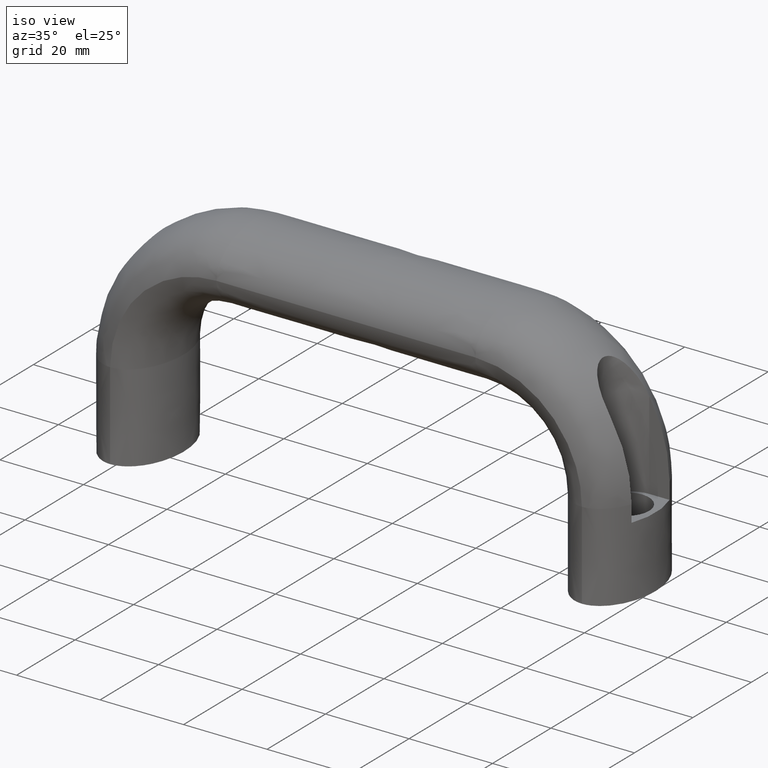
[diagram: clean part render]
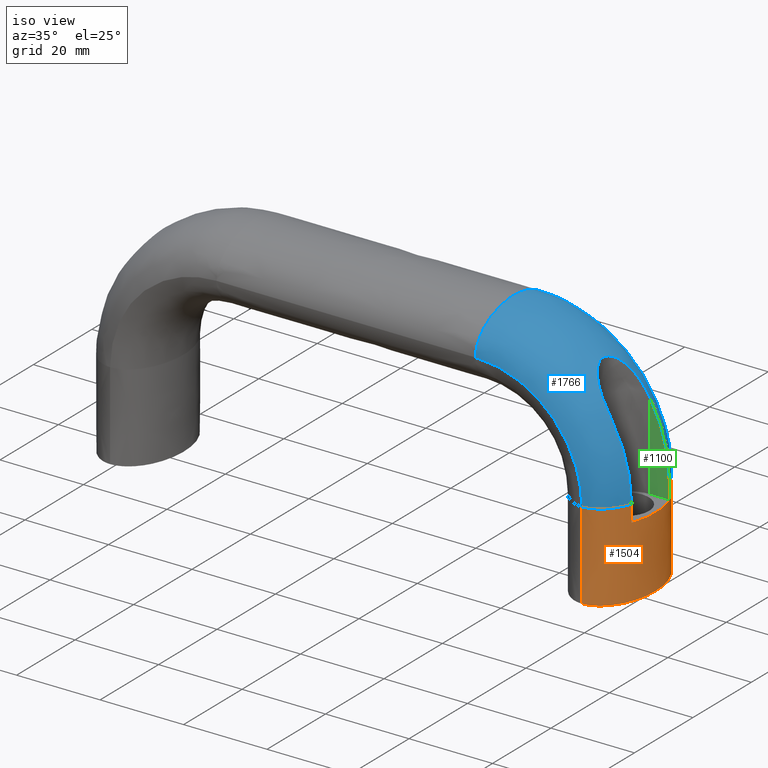
[diagram: same view with three faces highlighted in distinct colors, each labeled with its STEP entity id]
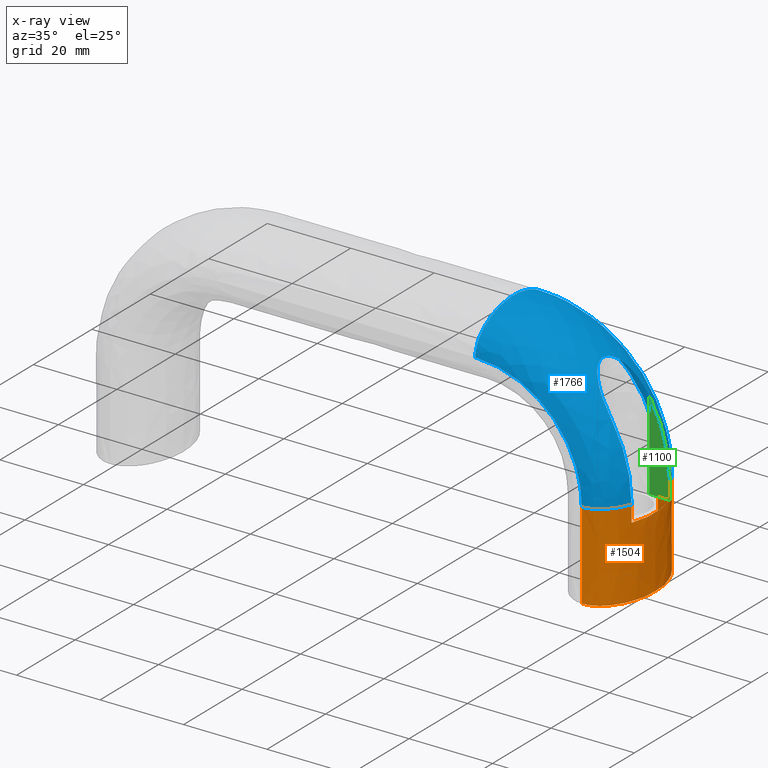
[diagram: x-ray of the same camera — body ghosted, the three highlighted faces saturated]
A machine part, iso view with three faces highlighted in distinct colors.
The next image is the same camera in x-ray (body ghosted, the three faces saturated) — at least one of them is partly hidden behind the body in this view.
Their STEP definitions:

[orange] entity #1504 — the highlighted face is a freeform B-spline surface patch.
#903=CARTESIAN_POINT('',(121.853663334117000,-6.500000000000000,17.0));
#904=VERTEX_POINT('',#903);
#910=CARTESIAN_POINT('',(121.853663334117000,6.499999999999920,17.0));
#911=VERTEX_POINT('',#910);
#912=CARTESIAN_POINT('',(121.853663334117100,6.500000000000044,17.0));
#913=CARTESIAN_POINT('',(122.592291666798900,4.531679130054392,17.0));
#914=CARTESIAN_POINT('',(123.0,2.270503260364182,17.0));
#915=CARTESIAN_POINT('',(123.0,-2.270503260364186,17.0));
#916=CARTESIAN_POINT('',(122.592291666798900,-4.531679130054394,17.0));
#917=CARTESIAN_POINT('',(121.853663334117100,-6.500000000000045,17.0));
#918=B_SPLINE_CURVE_WITH_KNOTS('',3,(#912,#913,#914,#915,#916,#917),.UNSPECIFIED.,.F.,.U.,(4,2,4),(0.666608811416948,0.750000000000000,0.833391188583052),.UNSPECIFIED.);
#919=EDGE_CURVE('',#911,#904,#918,.T.);
#936=CARTESIAN_POINT('',(121.853663334117000,-6.500000000000000,21.0));
#937=VERTEX_POINT('',#936);
#947=CARTESIAN_POINT('',(121.853663334117000,-6.500000000000000,21.0));
#948=CARTESIAN_POINT('',(121.853663334117000,-6.500000000000000,17.0));
#949=QUASI_UNIFORM_CURVE('',1,(#947,#948),.UNSPECIFIED.,.F.,.U.);
#950=EDGE_CURVE('',#937,#904,#949,.T.);
#1080=CARTESIAN_POINT('',(121.853663334117200,6.499999999999920,21.0));
#1081=VERTEX_POINT('',#1080);
#1093=CARTESIAN_POINT('',(121.853663334117000,6.499999999999920,17.0));
#1094=CARTESIAN_POINT('',(121.853663334117200,6.499999999999920,21.0));
#1095=QUASI_UNIFORM_CURVE('',1,(#1093,#1094),.UNSPECIFIED.,.F.,.U.);
#1096=EDGE_CURVE('',#911,#1081,#1095,.T.);
#1346=CARTESIAN_POINT('',(114.500000000000000,-13.0,0.0));
#1347=VERTEX_POINT('',#1346);
#1348=CARTESIAN_POINT('',(114.500000000000000,13.0,0.0));
#1349=VERTEX_POINT('',#1348);
#1372=CARTESIAN_POINT('',(114.500000000000000,13.0,0.0));
#1373=CARTESIAN_POINT('',(115.061008350387890,13.000005612824429,0.0));
#1374=CARTESIAN_POINT('',(116.210559998588490,12.826763592679921,0.0));
#1375=CARTESIAN_POINT('',(117.833314615998110,12.048234367351061,0.0));
#1376=CARTESIAN_POINT('',(119.315182254774600,10.820111583014061,0.0));
#1377=CARTESIAN_POINT('',(120.593216575982000,9.179086004326708,0.0));
#1378=CARTESIAN_POINT('',(121.644630209930990,7.203182874372907,0.0));
#1379=CARTESIAN_POINT('',(122.414837323242100,4.955442864097499,0.0));
#1380=CARTESIAN_POINT('',(122.896377610858910,2.525474974098515,0.0));
#1381=CARTESIAN_POINT('',(123.052338685462400,0.000251144597643,0.0));
#1382=CARTESIAN_POINT('',(122.896418713332590,-2.525220685022674,0.0));
#1383=CARTESIAN_POINT('',(122.414982038391300,-4.954978243300156,0.0));
#1384=CARTESIAN_POINT('',(121.644748482693000,-7.202965562011068,0.0));
#1385=CARTESIAN_POINT('',(120.593482829275000,-9.178724764850465,0.0));
#1386=CARTESIAN_POINT('',(119.315369231125600,-10.819976152613711,0.0));
#1387=CARTESIAN_POINT('',(117.833520107176200,-12.048087292629040,0.0));
#1388=CARTESIAN_POINT('',(116.210674697022700,-12.826963510561610,0.0));
#1389=CARTESIAN_POINT('',(115.061044984223600,-13.000076421159349,0.0));
#1390=CARTESIAN_POINT('',(114.500000000000000,-13.0,0.0));
#1391=B_SPLINE_CURVE_WITH_KNOTS('',3,(#1372,#1373,#1374,#1375,#1376,#1377,#1378,#1379,#1380,#1381,#1382,#1383,#1384,#1385,#1386,#1387,#1388,#1389,#1390),.UNSPECIFIED.,.F.,.U.,(4,1,1,1,1,1,1,1,1,1,1,1,1,1,1,1,4),(0.500000000000000,0.524589224867584,0.550385193088301,0.578210275846037,0.608546752851924,0.641322715691588,0.676258558830424,0.712714611411259,0.749999378944865,0.787273077896982,0.823740197974338,0.858665894471785,0.891451999925935,0.921779805092730,0.949613551016802,0.975409169413542,1.0),.UNSPECIFIED.);
#1392=EDGE_CURVE('',#1349,#1347,#1391,.T.);
#1405=CARTESIAN_POINT('',(114.232964624444900,13.0,21.210000000000001));
#1406=CARTESIAN_POINT('',(114.321978819336910,12.999001277163620,21.210000000000001));
#1407=CARTESIAN_POINT('',(115.523570531962600,13.027045414409230,21.210000000000001));
#1408=CARTESIAN_POINT('',(117.837471083550300,12.323036565618370,21.210000000000001));
#1409=CARTESIAN_POINT('',(119.723728010842510,10.395617706442160,21.210000000000001));
#1410=CARTESIAN_POINT('',(122.083928680683400,6.785826563922671,21.210000000000001));
#1411=CARTESIAN_POINT('',(123.0,3.403392041388941,21.210000000000001));
#1412=CARTESIAN_POINT('',(123.0,-3.403392041388945,21.210000000000001));
#1413=CARTESIAN_POINT('',(122.083928680683400,-6.785826563922671,21.210000000000001));
#1414=CARTESIAN_POINT('',(119.723728010842510,-10.395617706442160,21.210000000000001));
#1415=CARTESIAN_POINT('',(117.837471083550200,-12.323036565618350,21.210000000000001));
#1416=CARTESIAN_POINT('',(115.523570531962600,-13.027045414409240,21.210000000000001));
#1417=CARTESIAN_POINT('',(114.321978819336910,-12.999001277163620,21.210000000000001));
#1418=CARTESIAN_POINT('',(114.232964624444800,-13.0,21.210000000000001));
#1419=CARTESIAN_POINT('',(114.232964624444800,13.0,14.070000000000000));
#1420=CARTESIAN_POINT('',(114.321978819336910,12.999001277163620,14.070000000000000));
#1421=CARTESIAN_POINT('',(115.523570531962600,13.027045414409230,14.070000000000000));
#1422=CARTESIAN_POINT('',(117.837471083550300,12.323036565618370,14.070000000000000));
#1423=CARTESIAN_POINT('',(119.723728010842510,10.395617706442160,14.070000000000000));
#1424=CARTESIAN_POINT('',(122.083928680683400,6.785826563922671,14.070000000000000));
#1425=CARTESIAN_POINT('',(123.0,3.403392041388940,14.070000000000000));
#1426=CARTESIAN_POINT('',(123.0,-3.403392041388945,14.070000000000000));
#1427=CARTESIAN_POINT('',(122.083928680683400,-6.785826563922671,14.070000000000000));
#1428=CARTESIAN_POINT('',(119.723728010842510,-10.395617706442160,14.070000000000000));
#1429=CARTESIAN_POINT('',(117.837471083550300,-12.323036565618350,14.070000000000000));
#1430=CARTESIAN_POINT('',(115.523570531962600,-13.027045414409240,14.069999999999990));
#1431=CARTESIAN_POINT('',(114.321978819336910,-12.999001277163620,14.070000000000000));
#1432=CARTESIAN_POINT('',(114.232964624444800,-13.0,14.070000000000000));
#1433=CARTESIAN_POINT('',(114.232964624444800,13.0,6.930000000000292));
#1434=CARTESIAN_POINT('',(114.321978819336910,12.999001277163620,6.930000000000292));
#1435=CARTESIAN_POINT('',(115.523570531962600,13.027045414409240,6.930000000000298));
#1436=CARTESIAN_POINT('',(117.837471083550200,12.323036565618370,6.930000000000296));
#1437=CARTESIAN_POINT('',(119.723728010842510,10.395617706442160,6.930000000000297));
#1438=CARTESIAN_POINT('',(122.083928680683400,6.785826563922672,6.930000000000297));
#1439=CARTESIAN_POINT('',(123.0,3.403392041388940,6.930000000000297));
#1440=CARTESIAN_POINT('',(123.0,-3.403392041388945,6.930000000000297));
#1441=CARTESIAN_POINT('',(122.083928680683400,-6.785826563922672,6.930000000000297));
#1442=CARTESIAN_POINT('',(119.723728010842510,-10.395617706442151,6.930000000000297));
#1443=CARTESIAN_POINT('',(117.837471083550200,-12.323036565618350,6.930000000000297));
#1444=CARTESIAN_POINT('',(115.523570531962700,-13.027045414409240,6.930000000000297));
#1445=CARTESIAN_POINT('',(114.321978819336810,-12.999001277163620,6.930000000000292));
#1446=CARTESIAN_POINT('',(114.232964624444800,-13.0,6.930000000000292));
#1447=CARTESIAN_POINT('',(114.232964624444900,13.0,-0.210000000000011));
#1448=CARTESIAN_POINT('',(114.321978819336910,12.999001277163620,-0.210000000000011));
#1449=CARTESIAN_POINT('',(115.523570531962600,13.027045414409230,-0.210000000000012));
#1450=CARTESIAN_POINT('',(117.837471083550300,12.323036565618370,-0.210000000000012));
#1451=CARTESIAN_POINT('',(119.723728010842510,10.395617706442160,-0.210000000000012));
#1452=CARTESIAN_POINT('',(122.083928680683400,6.785826563922671,-0.210000000000012));
#1453=CARTESIAN_POINT('',(123.0,3.403392041388941,-0.210000000000012));
#1454=CARTESIAN_POINT('',(123.0,-3.403392041388945,-0.210000000000012));
#1455=CARTESIAN_POINT('',(122.083928680683400,-6.785826563922671,-0.210000000000012));
#1456=CARTESIAN_POINT('',(119.723728010842510,-10.395617706442160,-0.210000000000012));
#1457=CARTESIAN_POINT('',(117.837471083550200,-12.323036565618350,-0.210000000000012));
#1458=CARTESIAN_POINT('',(115.523570531962600,-13.027045414409240,-0.210000000000012));
#1459=CARTESIAN_POINT('',(114.321978819336910,-12.999001277163620,-0.210000000000011));
#1460=CARTESIAN_POINT('',(114.232964624444800,-13.0,-0.210000000000011));
#1461=B_SPLINE_SURFACE_WITH_KNOTS('',3,3,((#1405,#1419,#1433,#1447),(#1406,#1420,#1434,#1448),(#1407,#1421,#1435,#1449),(#1408,#1422,#1436,#1450),(#1409,#1423,#1437,#1451),(#1410,#1424,#1438,#1452),(#1411,#1425,#1439,#1453),(#1412,#1426,#1440,#1454),(#1413,#1427,#1441,#1455),(#1414,#1428,#1442,#1456),(#1415,#1429,#1443,#1457),(#1416,#1430,#1444,#1458),(#1417,#1431,#1445,#1459),(#1418,#1432,#1446,#1460)),.UNSPECIFIED.,.F.,.F.,.U.,(4,1,1,2,2,2,1,1,4),(4,4),(0.0,0.400139247064698,5.401879835373181,10.403620423681661,20.407101600298631,30.410582776915600,35.412323365224083,40.414063953532562,40.814203200597277),(0.0,21.420000000000929),.UNSPECIFIED.);
#1462=CARTESIAN_POINT('',(114.500000000000000,13.0,21.0));
#1463=VERTEX_POINT('',#1462);
#1464=CARTESIAN_POINT('',(114.500000000000000,13.0,21.0));
#1465=CARTESIAN_POINT('',(114.500000000000000,13.0,0.0));
#1466=QUASI_UNIFORM_CURVE('',1,(#1464,#1465),.UNSPECIFIED.,.F.,.U.);
#1467=EDGE_CURVE('',#1463,#1349,#1466,.T.);
#1468=ORIENTED_EDGE('',*,*,#1467,.F.);
#1469=CARTESIAN_POINT('',(114.500000000000000,13.0,21.0));
#1470=CARTESIAN_POINT('',(115.612647398138610,13.000000000020670,21.0));
#1471=CARTESIAN_POINT('',(116.724857017036400,12.661644796734990,21.0));
#1472=CARTESIAN_POINT('',(118.780761333112690,11.359223048711820,21.0));
#1473=CARTESIAN_POINT('',(119.723647119734390,10.395668951316139,21.0));
#1474=CARTESIAN_POINT('',(121.034186361965690,8.391314816163209,21.0));
#1475=CARTESIAN_POINT('',(121.485117837588500,7.482112058636693,21.0));
#1476=CARTESIAN_POINT('',(121.853663334117200,6.499999999999920,21.0));
#1477=B_SPLINE_CURVE_WITH_KNOTS('',3,(#1469,#1470,#1471,#1472,#1473,#1474,#1475,#1476),.UNSPECIFIED.,.F.,.U.,(4,2,2,4),(0.800041661561313,0.875052076952157,0.950062492343001,1.0),.UNSPECIFIED.);
#1478=EDGE_CURVE('',#1463,#1081,#1477,.T.);
#1479=ORIENTED_EDGE('',*,*,#1478,.T.);
#1480=ORIENTED_EDGE('',*,*,#1096,.F.);
#1481=ORIENTED_EDGE('',*,*,#919,.T.);
#1482=ORIENTED_EDGE('',*,*,#950,.F.);
#1483=CARTESIAN_POINT('',(114.500000000000000,-13.0,21.0));
#1484=VERTEX_POINT('',#1483);
#1485=CARTESIAN_POINT('',(121.853663334117200,-6.499999999999955,21.0));
#1486=CARTESIAN_POINT('',(121.485117837596700,-7.482112058566534,21.0));
#1487=CARTESIAN_POINT('',(121.034186361996300,-8.391314816032326,21.0));
#1488=CARTESIAN_POINT('',(119.723647119786800,-10.395668951176340,21.0));
#1489=CARTESIAN_POINT('',(118.780761333152600,-11.359223048605340,21.0));
#1490=CARTESIAN_POINT('',(116.724857017054010,-12.661644796688099,21.0));
#1491=CARTESIAN_POINT('',(115.612647398146390,-13.0,21.0));
#1492=CARTESIAN_POINT('',(114.500000000000000,-13.0,21.0));
#1493=B_SPLINE_CURVE_WITH_KNOTS('',3,(#1485,#1486,#1487,#1488,#1489,#1490,#1491,#1492),.UNSPECIFIED.,.F.,.U.,(4,2,2,4),(0.0,0.049937507652875,0.124947923043719,0.199958338434562),.UNSPECIFIED.);
#1494=EDGE_CURVE('',#937,#1484,#1493,.T.);
#1495=ORIENTED_EDGE('',*,*,#1494,.T.);
#1496=CARTESIAN_POINT('',(114.500000000000000,-13.0,21.0));
#1497=CARTESIAN_POINT('',(114.500000000000000,-13.0,0.0));
#1498=QUASI_UNIFORM_CURVE('',1,(#1496,#1497),.UNSPECIFIED.,.F.,.U.);
#1499=EDGE_CURVE('',#1484,#1347,#1498,.T.);
#1500=ORIENTED_EDGE('',*,*,#1499,.T.);
#1501=ORIENTED_EDGE('',*,*,#1392,.F.);
#1502=EDGE_LOOP('',(#1468,#1479,#1480,#1481,#1482,#1495,#1500,#1501));
#1503=FACE_OUTER_BOUND('',#1502,.T.);
#1504=ADVANCED_FACE('',(#1503),#1461,.T.);

[blue] entity #1766 — the highlighted face is a freeform B-spline surface patch.
#934=CARTESIAN_POINT('',(117.000000340339200,-6.500000000000000,38.182549847164204));
#935=VERTEX_POINT('',#934);
#936=CARTESIAN_POINT('',(121.853663334117000,-6.500000000000000,21.0));
#937=VERTEX_POINT('',#936);
#938=CARTESIAN_POINT('',(117.000000340339200,-6.500000000000000,38.182549847164204));
#939=CARTESIAN_POINT('',(117.903660305802300,-6.500000000000000,36.710772062070880));
#940=CARTESIAN_POINT('',(118.691898080272100,-6.500000000000000,35.168176507748221));
#941=CARTESIAN_POINT('',(120.998570350824910,-6.500000000000000,29.599377028269590));
#942=CARTESIAN_POINT('',(121.853663334117200,-6.500000000000000,25.301237633467771));
#943=CARTESIAN_POINT('',(121.853663334117000,-6.500000000000000,21.0));
#944=B_SPLINE_CURVE_WITH_KNOTS('',3,(#938,#939,#940,#941,#942,#943),.UNSPECIFIED.,.F.,.U.,(4,2,4),(0.809704774322556,0.831547860635880,0.885938134169185),.UNSPECIFIED.);
#945=EDGE_CURVE('',#935,#937,#944,.T.);
#982=CARTESIAN_POINT('',(117.000000340339200,6.500000000000000,38.182549847164204));
#983=VERTEX_POINT('',#982);
#989=CARTESIAN_POINT('',(117.000000340339200,-6.500000000000000,38.182549847164204));
#990=CARTESIAN_POINT('',(116.689212819799590,-6.500000016272799,38.688724930215891));
#991=CARTESIAN_POINT('',(116.374075039149700,-6.477785489742129,39.187420523616723));
#992=CARTESIAN_POINT('',(115.737511739066510,-6.384325359717667,40.170530579331427));
#993=CARTESIAN_POINT('',(115.416074747314000,-6.313138619209945,40.654949402667761));
#994=CARTESIAN_POINT('',(114.769004948507300,-6.114507299175566,41.609429837874401));
#995=CARTESIAN_POINT('',(114.443352822730900,-5.987184864616837,42.079503514977432));
#996=CARTESIAN_POINT('',(113.953397634521200,-5.744686316474722,42.773056789220362));
#997=CARTESIAN_POINT('',(113.789835666645300,-5.655218039729899,43.002306576826342));
#998=CARTESIAN_POINT('',(113.544397025067700,-5.506175588432023,43.343073584313167));
#999=CARTESIAN_POINT('',(113.462568775932400,-5.454015233107144,43.456143759508493));
#1000=CARTESIAN_POINT('',(113.298935924404010,-5.344326574630776,43.681199155967747));
#1001=CARTESIAN_POINT('',(113.217537073895200,-5.287066613626828,43.792625824436463));
#1002=CARTESIAN_POINT('',(112.975082064283900,-5.107879429655452,44.123028648885018));
#1003=CARTESIAN_POINT('',(112.815615398237600,-4.978481909081333,44.338334925389702));
#1004=CARTESIAN_POINT('',(112.502109477285100,-4.697162703184503,44.758082049817013));
#1005=CARTESIAN_POINT('',(112.348062117989700,-4.545261192518907,44.962530213749567));
#1006=CARTESIAN_POINT('',(112.122207060141700,-4.297629274081214,45.259996110081282));
#1007=CARTESIAN_POINT('',(112.047623084116690,-4.211552455400592,45.357836290735200));
#1008=CARTESIAN_POINT('',(111.901819403992500,-4.033827687452282,45.548408745797161));
#1009=CARTESIAN_POINT('',(111.830493321467900,-3.942084983978770,45.641282978542428));
#1010=CARTESIAN_POINT('',(111.621647653430100,-3.657684966937560,45.912314188036390));
#1011=CARTESIAN_POINT('',(111.489221579542100,-3.455918769201212,46.082928889700668));
#1012=CARTESIAN_POINT('',(111.240885595953300,-3.024012999277942,46.401169422617087));
#1013=CARTESIAN_POINT('',(111.124938059194900,-2.793933779640893,46.548842216379263));
#1014=CARTESIAN_POINT('',(110.993161616758800,-2.484435310275176,46.716008080514790));
#1015=CARTESIAN_POINT('',(110.967477182612500,-2.421428612549163,46.748553447636738));
#1016=CARTESIAN_POINT('',(110.918014522662300,-2.294362813816878,46.811168828004107));
#1017=CARTESIAN_POINT('',(110.894170629396400,-2.230153760890913,46.841322202161933));
#1018=CARTESIAN_POINT('',(110.825381736455500,-2.035446314719588,46.928240773272087));
#1019=CARTESIAN_POINT('',(110.783174969792800,-1.902871255312949,46.981470758674817));
#1020=CARTESIAN_POINT('',(110.706592850411790,-1.631826865822157,47.077943708618207));
#1021=CARTESIAN_POINT('',(110.672215789727800,-1.493358854141697,47.121188941677872));
#1022=CARTESIAN_POINT('',(110.627040998232700,-1.280873522850149,47.177980241475552));
#1023=CARTESIAN_POINT('',(110.613049316277990,-1.209246715526934,47.195562586552683));
#1024=CARTESIAN_POINT('',(110.587306275868200,-1.064319433154589,47.227904645726241));
#1025=CARTESIAN_POINT('',(110.575604616276290,-0.991255849450038,47.242601935396003));
#1026=CARTESIAN_POINT('',(110.523489183818900,-0.626031098075836,47.308052846446529));
#1027=CARTESIAN_POINT('',(110.501634561710900,-0.331247702444672,47.335504732429023));
#1028=CARTESIAN_POINT('',(110.499314528473600,0.114926075156774,47.338422369680892));
#1029=CARTESIAN_POINT('',(110.503635448742800,0.264319932610653,47.332987927382909));
#1030=CARTESIAN_POINT('',(110.518017609796000,0.489447285692638,47.314921560181837));
#1031=CARTESIAN_POINT('',(110.524106524431300,0.564221561942776,47.307274283298781));
#1032=CARTESIAN_POINT('',(110.538728000455900,0.712394852438946,47.288912449294507));
#1033=CARTESIAN_POINT('',(110.547269091885000,0.785931328552333,47.278187167384871));
#1034=CARTESIAN_POINT('',(110.595930618432210,1.150948725296678,47.217077024034140));
#1035=CARTESIAN_POINT('',(110.653824300684900,1.434481806680385,47.144381478569507));
#1036=CARTESIAN_POINT('',(110.747821793397700,1.779149495301427,47.026011038117893));
#1037=CARTESIAN_POINT('',(110.767700493102500,1.847536294677419,47.000963402537742));
#1038=CARTESIAN_POINT('',(110.809140767941800,1.981971107928838,46.948707657318550));
#1039=CARTESIAN_POINT('',(110.830750148987210,2.048199982302147,46.921439361185172));
#1040=CARTESIAN_POINT('',(110.898098341494300,2.244073019510390,46.836379958428118));
#1041=CARTESIAN_POINT('',(110.946352233554190,2.370909197326784,46.775340853701707));
#1042=CARTESIAN_POINT('',(111.100211030400300,2.741156128883769,46.580279871892763));
#1043=CARTESIAN_POINT('',(111.214866334988300,2.974358450609762,46.434376539548794));
#1044=CARTESIAN_POINT('',(111.371038639015590,3.250973735466596,46.234397793144097));
#1045=CARTESIAN_POINT('',(111.402927422013310,3.305552547944374,46.193506610030660));
#1046=CARTESIAN_POINT('',(111.467464567319200,3.412469893874991,46.110623038848203));
#1047=CARTESIAN_POINT('',(111.500171847545000,3.464915281177261,46.068555289391433));
#1048=CARTESIAN_POINT('',(111.599525461202400,3.619373592894201,45.940563372269942));
#1049=CARTESIAN_POINT('',(111.667401033334300,3.718513981955879,45.852853640921523));
#1050=CARTESIAN_POINT('',(111.875380358026210,4.005509383126116,45.583160606387537));
#1051=CARTESIAN_POINT('',(112.019812571253400,4.182989510824104,45.394643276437073));
#1052=CARTESIAN_POINT('',(112.318012745529800,4.514273299445814,45.002282988155628));
#1053=CARTESIAN_POINT('',(112.471850663654000,4.668105271659995,44.798348338771021));
#1054=CARTESIAN_POINT('',(112.787085254549790,4.954461886736014,44.376737959455603));
#1055=CARTESIAN_POINT('',(112.946400236404500,5.085126641578032,44.161847748078287));
#1056=CARTESIAN_POINT('',(113.427983050817500,5.445312748782186,43.506308444606319));
#1057=CARTESIAN_POINT('',(113.753826344620710,5.643332864116242,43.054876009681720));
#1058=CARTESIAN_POINT('',(114.246027657147490,5.890615302225689,42.359115872590522));
#1059=CARTESIAN_POINT('',(114.410688097670900,5.964654037304650,42.124067386119243));
#1060=CARTESIAN_POINT('',(114.658226703857690,6.064157510119217,41.766992764895321));
#1061=CARTESIAN_POINT('',(114.740831471392600,6.095396220739789,41.647216571644812));
#1062=CARTESIAN_POINT('',(114.906173159191100,6.154151987818338,41.406182423999972));
#1063=CARTESIAN_POINT('',(114.988881841655800,6.181654249837099,41.284963918328280));
#1064=CARTESIAN_POINT('',(115.400887997640400,6.309672652816891,40.677795653946042));
#1065=CARTESIAN_POINT('',(115.727000199518900,6.382418834765113,40.186583435168842));
#1066=CARTESIAN_POINT('',(116.370530576990210,6.477620467416178,39.193071878351262));
#1067=CARTESIAN_POINT('',(116.687957252026290,6.500000016338393,38.690769855060317));
#1068=CARTESIAN_POINT('',(117.000000340339200,6.500000000000000,38.182549847164204));
#1069=B_SPLINE_CURVE_WITH_KNOTS('',3,(#989,#990,#991,#992,#993,#994,#995,#996,#997,#998,#999,#1000,#1001,#1002,#1003,#1004,#1005,#1006,#1007,#1008,#1009,#1010,#1011,#1012,#1013,#1014,#1015,#1016,#1017,#1018,#1019,#1020,#1021,#1022,#1023,#1024,#1025,#1026,#1027,#1028,#1029,#1030,#1031,#1032,#1033,#1034,#1035,#1036,#1037,#1038,#1039,#1040,#1041,#1042,#1043,#1044,#1045,#1046,#1047,#1048,#1049,#1050,#1051,#1052,#1053,#1054,#1055,#1056,#1057,#1058,#1059,#1060,#1061,#1062,#1063,#1064,#1065,#1066,#1067,#1068),.UNSPECIFIED.,.F.,.U.,(4,2,2,2,2,2,2,2,2,2,2,2,2,2,2,2,2,2,2,2,2,2,2,2,2,2,2,2,2,2,2,2,2,2,2,2,2,2,2,4),(0.0,0.062499999999996,0.124999999999992,0.187499999999989,0.218749999999987,0.234374999999986,0.249999999999985,0.281249999999984,0.312499999999984,0.328124999999983,0.343749999999983,0.374999999999984,0.406249999999984,0.414062499999985,0.421874999999985,0.437499999999985,0.453124999999986,0.460937499999986,0.468749999999986,0.499999999999987,0.515624999999987,0.523437499999987,0.531249999999987,0.562499999999987,0.570312499999988,0.578124999999988,0.593749999999988,0.624999999999990,0.632812499999990,0.640624999999990,0.656249999999991,0.687499999999992,0.718749999999993,0.749999999999993,0.812499999999996,0.843749999999997,0.859374999999998,0.874999999999999,0.937499999999999,1.0),.UNSPECIFIED.);
#1070=EDGE_CURVE('',#935,#983,#1069,.T.);
#1080=CARTESIAN_POINT('',(121.853663334117200,6.499999999999920,21.0));
#1081=VERTEX_POINT('',#1080);
#1082=CARTESIAN_POINT('',(121.853663334117200,6.499999999999920,21.0));
#1083=CARTESIAN_POINT('',(121.853663334105210,6.499999999999939,25.301237633463771));
#1084=CARTESIAN_POINT('',(120.998570350822310,6.499999999999958,29.599377028269959));
#1085=CARTESIAN_POINT('',(118.691898080261000,6.499999999999985,35.168176507747752));
#1086=CARTESIAN_POINT('',(117.903660305795100,6.499999999999993,36.710772062070212));
#1087=CARTESIAN_POINT('',(117.000000340339200,6.500000000000000,38.182549847164204));
#1088=B_SPLINE_CURVE_WITH_KNOTS('',3,(#1082,#1083,#1084,#1085,#1086,#1087),.UNSPECIFIED.,.F.,.U.,(4,2,4),(0.809704774322579,0.864095047855884,0.885938134169185),.UNSPECIFIED.);
#1089=EDGE_CURVE('',#1081,#983,#1088,.T.);
#1462=CARTESIAN_POINT('',(114.500000000000000,13.0,21.0));
#1463=VERTEX_POINT('',#1462);
#1469=CARTESIAN_POINT('',(114.500000000000000,13.0,21.0));
#1470=CARTESIAN_POINT('',(115.612647398138610,13.000000000020670,21.0));
#1471=CARTESIAN_POINT('',(116.724857017036400,12.661644796734990,21.0));
#1472=CARTESIAN_POINT('',(118.780761333112690,11.359223048711820,21.0));
#1473=CARTESIAN_POINT('',(119.723647119734390,10.395668951316139,21.0));
#1474=CARTESIAN_POINT('',(121.034186361965690,8.391314816163209,21.0));
#1475=CARTESIAN_POINT('',(121.485117837588500,7.482112058636693,21.0));
#1476=CARTESIAN_POINT('',(121.853663334117200,6.499999999999920,21.0));
#1477=B_SPLINE_CURVE_WITH_KNOTS('',3,(#1469,#1470,#1471,#1472,#1473,#1474,#1475,#1476),.UNSPECIFIED.,.F.,.U.,(4,2,2,4),(0.800041661561313,0.875052076952157,0.950062492343001,1.0),.UNSPECIFIED.);
#1478=EDGE_CURVE('',#1463,#1081,#1477,.T.);
#1483=CARTESIAN_POINT('',(114.500000000000000,-13.0,21.0));
#1484=VERTEX_POINT('',#1483);
#1485=CARTESIAN_POINT('',(121.853663334117200,-6.499999999999955,21.0));
#1486=CARTESIAN_POINT('',(121.485117837596700,-7.482112058566534,21.0));
#1487=CARTESIAN_POINT('',(121.034186361996300,-8.391314816032326,21.0));
#1488=CARTESIAN_POINT('',(119.723647119786800,-10.395668951176340,21.0));
#1489=CARTESIAN_POINT('',(118.780761333152600,-11.359223048605340,21.0));
#1490=CARTESIAN_POINT('',(116.724857017054010,-12.661644796688099,21.0));
#1491=CARTESIAN_POINT('',(115.612647398146390,-13.0,21.0));
#1492=CARTESIAN_POINT('',(114.500000000000000,-13.0,21.0));
#1493=B_SPLINE_CURVE_WITH_KNOTS('',3,(#1485,#1486,#1487,#1488,#1489,#1490,#1491,#1492),.UNSPECIFIED.,.F.,.U.,(4,2,2,4),(0.0,0.049937507652875,0.124947923043719,0.199958338434562),.UNSPECIFIED.);
#1494=EDGE_CURVE('',#937,#1484,#1493,.T.);
#1585=CARTESIAN_POINT('',(88.603576711882980,13.0,46.232964624444513));
#1586=CARTESIAN_POINT('',(88.602178251561185,12.999001277163620,46.321978819336671));
#1587=CARTESIAN_POINT('',(88.583300606988317,13.027045414409260,47.523570531962463));
#1588=CARTESIAN_POINT('',(88.546947999248601,12.323036565618370,49.837471083550270));
#1589=CARTESIAN_POINT('',(88.517313900187602,10.395617706442160,51.723728010842507));
#1590=CARTESIAN_POINT('',(88.480233892978092,6.785826563922671,54.083928680683393));
#1591=CARTESIAN_POINT('',(88.465841925567545,3.403392041388941,55.0));
#1592=CARTESIAN_POINT('',(88.465841925567545,-3.403392041388945,55.0));
#1593=CARTESIAN_POINT('',(88.480233892978092,-6.785826563922671,54.083928680683393));
#1594=CARTESIAN_POINT('',(88.517313900185727,-10.395617706442160,51.723728010842507));
#1595=CARTESIAN_POINT('',(88.546947999249625,-12.323036565618350,49.837471083550277));
#1596=CARTESIAN_POINT('',(88.583300606988047,-13.027045414409271,47.523570531962463));
#1597=CARTESIAN_POINT('',(88.602178251561199,-12.999001277163620,46.321978819336678));
#1598=CARTESIAN_POINT('',(88.603576711882980,-13.0,46.232964624444513));
#1599=CARTESIAN_POINT('',(88.735715980408415,13.0,46.232460243020313));
#1600=CARTESIAN_POINT('',(88.734783667080308,12.999001277163620,46.321472658608798));
#1601=CARTESIAN_POINT('',(88.722198483672329,13.027045414409260,47.523040352632400));
#1602=CARTESIAN_POINT('',(88.697963244260080,12.323036565618370,49.836894651690109));
#1603=CARTESIAN_POINT('',(88.678207041606115,10.395617706442160,51.723113874615478));
#1604=CARTESIAN_POINT('',(88.653486865860714,6.785826563922671,54.083267366433759));
#1605=CARTESIAN_POINT('',(88.643892154573294,3.403392041388941,54.999320374411873));
#1606=CARTESIAN_POINT('',(88.643892154573294,-3.403392041388945,54.999320374411873));
#1607=CARTESIAN_POINT('',(88.653486865860714,-6.785826563922671,54.083267366433759));
#1608=CARTESIAN_POINT('',(88.678207041604807,-10.395617706442160,51.723113874615478));
#1609=CARTESIAN_POINT('',(88.697963244260791,-12.323036565618350,49.836894651690123));
#1610=CARTESIAN_POINT('',(88.722198483672159,-13.027045414409271,47.523040352632393));
#1611=CARTESIAN_POINT('',(88.734783667080322,-12.999001277163620,46.321472658608798));
#1612=CARTESIAN_POINT('',(88.735715980408415,-13.0,46.232460243020299));
#1613=CARTESIAN_POINT('',(92.171188476003366,13.0,46.259259949451241));
#1614=CARTESIAN_POINT('',(92.182375460697571,12.999001277163620,46.348366906221131));
#1615=CARTESIAN_POINT('',(92.333387196680647,13.027045414409260,47.551210800071253));
#1616=CARTESIAN_POINT('',(92.624189917377947,12.323036565618370,49.867522672247432));
#1617=CARTESIAN_POINT('',(92.861247921439357,10.395617706442160,51.755745271807697));
#1618=CARTESIAN_POINT('',(93.157869474902412,6.785826563922671,54.118405511684770));
#1619=CARTESIAN_POINT('',(93.272998032097775,3.403392041388941,55.035431470833473));
#1620=CARTESIAN_POINT('',(93.272998032097775,-3.403392041388945,55.035431470833473));
#1621=CARTESIAN_POINT('',(93.157869474901560,-6.785826563922671,54.118405511684770));
#1622=CARTESIAN_POINT('',(92.861247921444388,-10.395617706442160,51.755745271808259));
#1623=CARTESIAN_POINT('',(92.624189917375531,-12.323036565618350,49.867522672243084));
#1624=CARTESIAN_POINT('',(92.333387196680562,-13.027045414409271,47.551210800069448));
#1625=CARTESIAN_POINT('',(92.182375460696690,-12.999001277163620,46.348366906217827));
#1626=CARTESIAN_POINT('',(92.171188476002499,-13.0,46.259259949447767));
#1627=CARTESIAN_POINT('',(98.907276983068300,13.0,44.919259231606752));
#1628=CARTESIAN_POINT('',(98.942226831306570,12.999001277163609,45.003639074982722));
#1629=CARTESIAN_POINT('',(99.414010551326612,13.027045414409271,46.142672244197918));
#1630=CARTESIAN_POINT('',(100.322522651148110,12.323036565618370,48.336104048719612));
#1631=CARTESIAN_POINT('',(101.063128050394500,10.395617706442151,50.124156665320847));
#1632=CARTESIAN_POINT('',(101.989819072225600,6.785826563922670,52.361478062184140));
#1633=CARTESIAN_POINT('',(102.349498262994300,3.403392041388941,53.229855903923863));
#1634=CARTESIAN_POINT('',(102.349498262994300,-3.403392041388945,53.229855903923863));
#1635=CARTESIAN_POINT('',(101.989819072229810,-6.785826563922670,52.361478062184140));
#1636=CARTESIAN_POINT('',(101.063128050396900,-10.395617706442151,50.124156665322140));
#1637=CARTESIAN_POINT('',(100.322522651144790,-12.323036565618350,48.336104048720422));
#1638=CARTESIAN_POINT('',(99.414010551330847,-13.027045414409271,46.142672244203332));
#1639=CARTESIAN_POINT('',(98.942226831310762,-12.999001277163620,45.003639074987042));
#1640=CARTESIAN_POINT('',(98.907276983072549,-13.0,44.919259231611072));
#1641=CARTESIAN_POINT('',(107.306923289351400,13.0,39.306917409108593));
#1642=CARTESIAN_POINT('',(107.371504525120100,12.999001277163620,39.371498624133451));
#1643=CARTESIAN_POINT('',(108.243278715571090,13.027045414409260,40.243272534566877));
#1644=CARTESIAN_POINT('',(109.922050929912700,12.323036565618370,41.922044209686128));
#1645=CARTESIAN_POINT('',(111.290560789371990,10.395617706442160,43.290553629574603));
#1646=CARTESIAN_POINT('',(113.002924487152200,6.785826563922671,45.002916777337667));
#1647=CARTESIAN_POINT('',(113.667549021758500,3.403392041388941,45.667541098467247));
#1648=CARTESIAN_POINT('',(113.667549021758500,-3.403392041388945,45.667541098467247));
#1649=CARTESIAN_POINT('',(113.002924487146800,-6.785826563922671,45.002916777337667));
#1650=CARTESIAN_POINT('',(111.290560789367800,-10.395617706442160,43.290553629573232));
#1651=CARTESIAN_POINT('',(109.922050929917400,-12.323036565618350,41.922044209684522));
#1652=CARTESIAN_POINT('',(108.243278715565400,-13.027045414409271,40.243272534566252));
#1653=CARTESIAN_POINT('',(107.371504525114600,-12.999001277163620,39.371498624131959));
#1654=CARTESIAN_POINT('',(107.306923289346000,-13.0,39.306917409107001));
#1655=CARTESIAN_POINT('',(112.919308992587300,13.0,30.907270620791230));
#1656=CARTESIAN_POINT('',(113.003689011504600,12.999001277163620,30.942220446585338));
#1657=CARTESIAN_POINT('',(114.142724550328790,13.027045414409260,31.414003863632360));
#1658=CARTESIAN_POINT('',(116.336160918021800,12.323036565618370,32.322515380027063));
#1659=CARTESIAN_POINT('',(118.124217254442800,10.395617706442160,33.063120303677408));
#1660=CARTESIAN_POINT('',(120.361543305768610,6.785826563922669,33.989810730405033));
#1661=CARTESIAN_POINT('',(121.229922954062500,3.403392041388941,34.349489690191959));
#1662=CARTESIAN_POINT('',(121.229922954062500,-3.403392041388945,34.349489690191959));
#1663=CARTESIAN_POINT('',(120.361543305776910,-6.785826563922669,33.989810730405033));
#1664=CARTESIAN_POINT('',(118.124217254449210,-10.395617706442160,33.063120303677422));
#1665=CARTESIAN_POINT('',(116.336160918014500,-12.323036565618350,32.322515380031788));
#1666=CARTESIAN_POINT('',(114.142724550337500,-13.027045414409271,31.414003863628650));
#1667=CARTESIAN_POINT('',(113.003689011513100,-12.999001277163620,30.942220446585171));
#1668=CARTESIAN_POINT('',(112.919308992595800,-13.0,30.907270620791369));
#1669=CARTESIAN_POINT('',(114.259249923216800,13.0,24.171189757924619));
#1670=CARTESIAN_POINT('',(114.348356844617400,12.999001277163620,24.182376747141010));
#1671=CARTESIAN_POINT('',(115.551200261023000,13.027045414409260,24.333388544167970));
#1672=CARTESIAN_POINT('',(117.867511213772700,12.323036565618370,24.624191382413859));
#1673=CARTESIAN_POINT('',(119.755733063831700,10.395617706442160,24.861249482306789));
#1674=CARTESIAN_POINT('',(122.118392365895500,6.785826563922671,25.157871155672140));
#1675=CARTESIAN_POINT('',(123.035417961041110,3.403392041388941,25.272999759407561));
#1676=CARTESIAN_POINT('',(123.035417961041110,-3.403392041388945,25.272999759407561));
#1677=CARTESIAN_POINT('',(122.118392365885400,-6.785826563922671,25.157871155672140));
#1678=CARTESIAN_POINT('',(119.755733063829600,-10.395617706442151,24.861249482309571));
#1679=CARTESIAN_POINT('',(117.867511213778300,-12.323036565618350,24.624191382411361));
#1680=CARTESIAN_POINT('',(115.551200261013190,-13.027045414409271,24.333388544169100));
#1681=CARTESIAN_POINT('',(114.348356844607300,-12.999001277163620,24.182376747141038));
#1682=CARTESIAN_POINT('',(114.259249923206700,-13.0,24.171189757924591));
#1683=CARTESIAN_POINT('',(114.232460243020300,13.0,20.735715980408550));
#1684=CARTESIAN_POINT('',(114.321472658608800,12.999001277163620,20.734783667080460));
#1685=CARTESIAN_POINT('',(115.523040352632410,13.027045414409260,20.722198483672852));
#1686=CARTESIAN_POINT('',(117.836894651690100,12.323036565618370,20.697963244261700));
#1687=CARTESIAN_POINT('',(119.723113874615510,10.395617706442160,20.678207041606651));
#1688=CARTESIAN_POINT('',(122.083267366433800,6.785826563922671,20.653486865862149));
#1689=CARTESIAN_POINT('',(122.999320374411890,3.403392041388941,20.643892154574729));
#1690=CARTESIAN_POINT('',(122.999320374411890,-3.403392041388945,20.643892154574729));
#1691=CARTESIAN_POINT('',(122.083267366433800,-6.785826563922671,20.653486865862149));
#1692=CARTESIAN_POINT('',(119.723113874615510,-10.395617706442160,20.678207041606001));
#1693=CARTESIAN_POINT('',(117.836894651690100,-12.323036565618350,20.697963244262048));
#1694=CARTESIAN_POINT('',(115.523040352632410,-13.027045414409271,20.722198483672759));
#1695=CARTESIAN_POINT('',(114.321472658608800,-12.999001277163620,20.734783667080460));
#1696=CARTESIAN_POINT('',(114.232460243020300,-13.0,20.735715980408550));
#1697=CARTESIAN_POINT('',(114.232964624444510,13.0,20.603576711883189));
#1698=CARTESIAN_POINT('',(114.321978819336710,12.999001277163620,20.602178251561401));
#1699=CARTESIAN_POINT('',(115.523570531962510,13.027045414409260,20.583300606989049));
#1700=CARTESIAN_POINT('',(117.837471083550300,12.323036565618370,20.546947999250950));
#1701=CARTESIAN_POINT('',(119.723728010842510,10.395617706442160,20.517313900188391));
#1702=CARTESIAN_POINT('',(122.083928680683400,6.785826563922671,20.480233892980198));
#1703=CARTESIAN_POINT('',(123.0,3.403392041388941,20.465841925569642));
#1704=CARTESIAN_POINT('',(123.0,-3.403392041388945,20.465841925569642));
#1705=CARTESIAN_POINT('',(122.083928680683400,-6.785826563922671,20.480233892980198));
#1706=CARTESIAN_POINT('',(119.723728010842510,-10.395617706442160,20.517313900187450));
#1707=CARTESIAN_POINT('',(117.837471083550200,-12.323036565618350,20.546947999251469));
#1708=CARTESIAN_POINT('',(115.523570531962510,-13.027045414409271,20.583300606988921));
#1709=CARTESIAN_POINT('',(114.321978819336710,-12.999001277163620,20.602178251561408));
#1710=CARTESIAN_POINT('',(114.232964624444510,-13.0,20.603576711883189));
#1711=B_SPLINE_SURFACE_WITH_KNOTS('',3,3,((#1585,#1599,#1613,#1627,#1641,#1655,#1669,#1683,#1697),(#1586,#1600,#1614,#1628,#1642,#1656,#1670,#1684,#1698),(#1587,#1601,#1615,#1629,#1643,#1657,#1671,#1685,#1699),(#1588,#1602,#1616,#1630,#1644,#1658,#1672,#1686,#1700),(#1589,#1603,#1617,#1631,#1645,#1659,#1673,#1687,#1701),(#1590,#1604,#1618,#1632,#1646,#1660,#1674,#1688,#1702),(#1591,#1605,#1619,#1633,#1647,#1661,#1675,#1689,#1703),(#1592,#1606,#1620,#1634,#1648,#1662,#1676,#1690,#1704),(#1593,#1607,#1621,#1635,#1649,#1663,#1677,#1691,#1705),(#1594,#1608,#1622,#1636,#1650,#1664,#1678,#1692,#1706),(#1595,#1609,#1623,#1637,#1651,#1665,#1679,#1693,#1707),(#1596,#1610,#1624,#1638,#1652,#1666,#1680,#1694,#1708),(#1597,#1611,#1625,#1639,#1653,#1667,#1681,#1695,#1709),(#1598,#1612,#1626,#1640,#1654,#1668,#1682,#1696,#1710)),.UNSPECIFIED.,.F.,.F.,.U.,(4,1,1,2,2,2,1,1,4),(4,1,1,1,1,1,4),(0.0,0.400140751270803,5.401900142149210,10.403659533027620,20.407178314784431,30.410697096541249,35.412456487419661,40.414215878298073,40.814356629568863),(0.0,0.529507802115158,13.767202854994091,27.004897907873040,40.242592960752013,53.480288013630933,54.009795815746088),.UNSPECIFIED.);
#1712=ORIENTED_EDGE('',*,*,#1478,.F.);
#1713=CARTESIAN_POINT('',(89.0,13.0,46.500000000000000));
#1714=VERTEX_POINT('',#1713);
#1715=CARTESIAN_POINT('',(89.0,13.0,46.500000000000000));
#1716=CARTESIAN_POINT('',(92.338487965194162,13.0,46.500000000000000));
#1717=CARTESIAN_POINT('',(95.674571173103459,13.0,45.836303204552927));
#1718=CARTESIAN_POINT('',(101.842283877516100,13.0,43.281552953522699));
#1719=CARTESIAN_POINT('',(104.670941452691100,13.0,41.391504387851647));
#1720=CARTESIAN_POINT('',(109.391504387822710,13.0,36.670941452662213));
#1721=CARTESIAN_POINT('',(111.281552953516890,13.0,33.842283877513147));
#1722=CARTESIAN_POINT('',(113.836303204558700,13.0,27.674571173106280));
#1723=CARTESIAN_POINT('',(114.500000000000000,13.0,24.338487965191920));
#1724=CARTESIAN_POINT('',(114.500000000000000,13.0,21.0));
#1725=B_SPLINE_CURVE_WITH_KNOTS('',3,(#1715,#1716,#1717,#1718,#1719,#1720,#1721,#1722,#1723,#1724),.UNSPECIFIED.,.F.,.U.,(4,2,2,2,4),(0.668377040035965,0.722767313569270,0.777157587102575,0.831547860635880,0.885938134169185),.UNSPECIFIED.);
#1726=EDGE_CURVE('',#1714,#1463,#1725,.T.);
#1727=ORIENTED_EDGE('',*,*,#1726,.F.);
#1728=CARTESIAN_POINT('',(89.0,-13.0,46.500000000000000));
#1729=VERTEX_POINT('',#1728);
#1730=CARTESIAN_POINT('',(89.0,13.0,46.500000000000000));
#1731=CARTESIAN_POINT('',(89.0,13.0,47.612647398146400));
#1732=CARTESIAN_POINT('',(89.0,12.661644796688099,48.724857017053907));
#1733=CARTESIAN_POINT('',(89.0,11.359223048605360,50.780761333152697));
#1734=CARTESIAN_POINT('',(89.0,10.395668951176340,51.723647119786797));
#1735=CARTESIAN_POINT('',(89.0,6.785826563922671,54.083928680683393));
#1736=CARTESIAN_POINT('',(89.0,3.403392041388941,55.0));
#1737=CARTESIAN_POINT('',(89.0,-3.403392041388945,55.0));
#1738=CARTESIAN_POINT('',(89.0,-6.785826563922671,54.083928680683393));
#1739=CARTESIAN_POINT('',(89.0,-10.395668951176340,51.723647119786797));
#1740=CARTESIAN_POINT('',(89.0,-11.359223048605340,50.780761333152697));
#1741=CARTESIAN_POINT('',(89.0,-12.661644796688099,48.724857017053907));
#1742=CARTESIAN_POINT('',(89.0,-13.0,47.612647398146400));
#1743=CARTESIAN_POINT('',(89.0,-13.0,46.500000000000000));
#1744=B_SPLINE_CURVE_WITH_KNOTS('',3,(#1730,#1731,#1732,#1733,#1734,#1735,#1736,#1737,#1738,#1739,#1740,#1741,#1742,#1743),.UNSPECIFIED.,.F.,.U.,(4,2,2,2,2,2,4),(0.500000000000000,0.562500000000000,0.625000000000000,0.750000000000000,0.875000000000000,0.937500000000000,1.0),.UNSPECIFIED.);
#1745=EDGE_CURVE('',#1714,#1729,#1744,.T.);
#1746=ORIENTED_EDGE('',*,*,#1745,.T.);
#1747=CARTESIAN_POINT('',(89.0,-13.0,46.500000000000000));
#1748=CARTESIAN_POINT('',(92.338487965194147,-13.0,46.500000000000000));
#1749=CARTESIAN_POINT('',(95.674571173103459,-13.0,45.836303204547121));
#1750=CARTESIAN_POINT('',(101.842283877516100,-13.0,43.281552953528497));
#1751=CARTESIAN_POINT('',(104.670941452691100,-13.0,41.391504387857452));
#1752=CARTESIAN_POINT('',(109.391504387822710,-13.0,36.670941452656422));
#1753=CARTESIAN_POINT('',(111.281552953540100,-13.0,33.842283877513147));
#1754=CARTESIAN_POINT('',(113.836303204535600,-13.0,27.674571173106269));
#1755=CARTESIAN_POINT('',(114.500000000000000,-13.0,24.338487965191931));
#1756=CARTESIAN_POINT('',(114.500000000000000,-13.0,21.0));
#1757=B_SPLINE_CURVE_WITH_KNOTS('',3,(#1747,#1748,#1749,#1750,#1751,#1752,#1753,#1754,#1755,#1756),.UNSPECIFIED.,.F.,.U.,(4,2,2,2,4),(0.668377040035965,0.722767313569270,0.777157587102575,0.831547860635880,0.885938134169185),.UNSPECIFIED.);
#1758=EDGE_CURVE('',#1729,#1484,#1757,.T.);
#1759=ORIENTED_EDGE('',*,*,#1758,.T.);
#1760=ORIENTED_EDGE('',*,*,#1494,.F.);
#1761=ORIENTED_EDGE('',*,*,#945,.F.);
#1762=ORIENTED_EDGE('',*,*,#1070,.T.);
#1763=ORIENTED_EDGE('',*,*,#1089,.F.);
#1764=EDGE_LOOP('',(#1712,#1727,#1746,#1759,#1760,#1761,#1762,#1763));
#1765=FACE_OUTER_BOUND('',#1764,.T.);
#1766=ADVANCED_FACE('',(#1765),#1711,.T.);

[green] entity #1100 — the highlighted face is a freeform B-spline surface patch.
#865=CARTESIAN_POINT('',(117.000000340339200,6.500000000000000,17.0));
#866=VERTEX_POINT('',#865);
#910=CARTESIAN_POINT('',(121.853663334117000,6.499999999999920,17.0));
#911=VERTEX_POINT('',#910);
#921=CARTESIAN_POINT('',(121.853663334117000,6.499999999999920,17.0));
#922=CARTESIAN_POINT('',(117.000000340339200,6.500000000000000,17.0));
#923=QUASI_UNIFORM_CURVE('',1,(#921,#922),.UNSPECIFIED.,.F.,.U.);
#924=EDGE_CURVE('',#911,#866,#923,.T.);
#982=CARTESIAN_POINT('',(117.000000340339200,6.500000000000000,38.182549847164204));
#983=VERTEX_POINT('',#982);
#984=CARTESIAN_POINT('',(117.000000340339200,6.500000000000000,38.182549847164204));
#985=CARTESIAN_POINT('',(117.000000340339200,6.500000000000000,17.0));
#986=QUASI_UNIFORM_CURVE('',1,(#984,#985),.UNSPECIFIED.,.F.,.U.);
#987=EDGE_CURVE('',#983,#866,#986,.T.);
#1075=CARTESIAN_POINT('',(116.757559883207310,6.499999999999920,15.941931676190039));
#1076=CARTESIAN_POINT('',(116.757559883207310,6.499999999999920,39.240618739134433));
#1077=CARTESIAN_POINT('',(122.096103921434410,6.499999999999920,15.941931676190039));
#1078=CARTESIAN_POINT('',(122.096103921434410,6.499999999999920,39.240618739134433));
#1079=B_SPLINE_SURFACE_WITH_KNOTS('',1,1,((#1075,#1077),(#1076,#1078)),.UNSPECIFIED.,.F.,.F.,.U.,(2,2),(2,2),(0.0,23.298687062944389),(0.0,5.338544038227099),.UNSPECIFIED.);
#1080=CARTESIAN_POINT('',(121.853663334117200,6.499999999999920,21.0));
#1081=VERTEX_POINT('',#1080);
#1082=CARTESIAN_POINT('',(121.853663334117200,6.499999999999920,21.0));
#1083=CARTESIAN_POINT('',(121.853663334105210,6.499999999999939,25.301237633463771));
#1084=CARTESIAN_POINT('',(120.998570350822310,6.499999999999958,29.599377028269959));
#1085=CARTESIAN_POINT('',(118.691898080261000,6.499999999999985,35.168176507747752));
#1086=CARTESIAN_POINT('',(117.903660305795100,6.499999999999993,36.710772062070212));
#1087=CARTESIAN_POINT('',(117.000000340339200,6.500000000000000,38.182549847164204));
#1088=B_SPLINE_CURVE_WITH_KNOTS('',3,(#1082,#1083,#1084,#1085,#1086,#1087),.UNSPECIFIED.,.F.,.U.,(4,2,4),(0.809704774322579,0.864095047855884,0.885938134169185),.UNSPECIFIED.);
#1089=EDGE_CURVE('',#1081,#983,#1088,.T.);
#1090=ORIENTED_EDGE('',*,*,#1089,.T.);
#1091=ORIENTED_EDGE('',*,*,#987,.T.);
#1092=ORIENTED_EDGE('',*,*,#924,.F.);
#1093=CARTESIAN_POINT('',(121.853663334117000,6.499999999999920,17.0));
#1094=CARTESIAN_POINT('',(121.853663334117200,6.499999999999920,21.0));
#1095=QUASI_UNIFORM_CURVE('',1,(#1093,#1094),.UNSPECIFIED.,.F.,.U.);
#1096=EDGE_CURVE('',#911,#1081,#1095,.T.);
#1097=ORIENTED_EDGE('',*,*,#1096,.T.);
#1098=EDGE_LOOP('',(#1090,#1091,#1092,#1097));
#1099=FACE_OUTER_BOUND('',#1098,.T.);
#1100=ADVANCED_FACE('',(#1099),#1079,.F.);